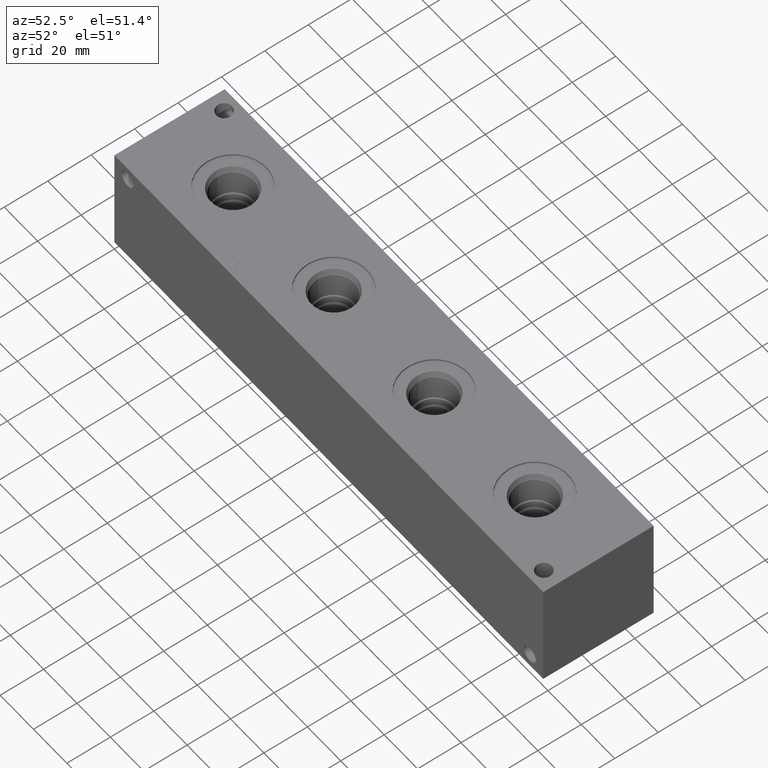
[diagram: clean part render]
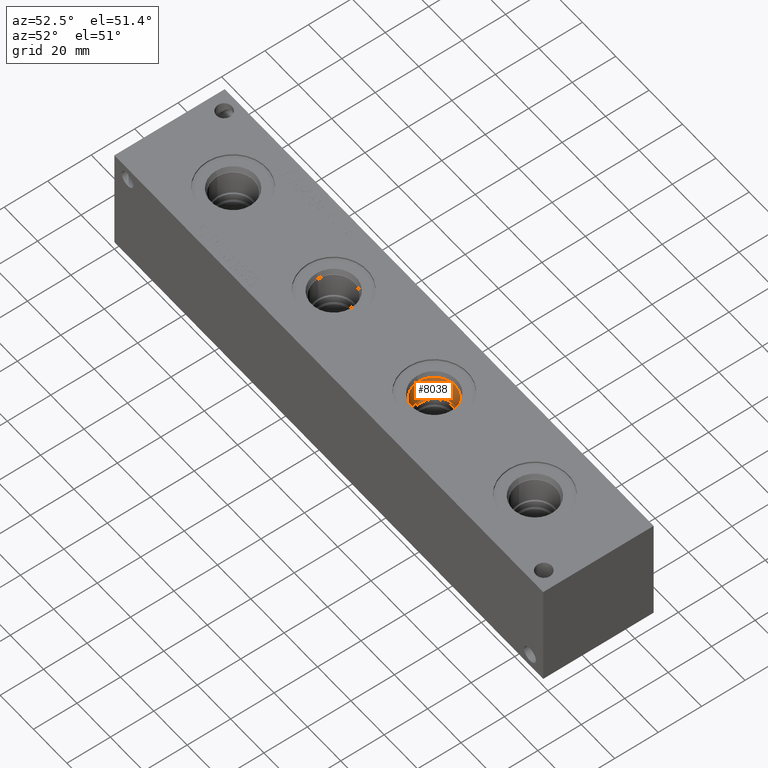
[diagram: same view with one face highlighted and labeled with its STEP entity id]
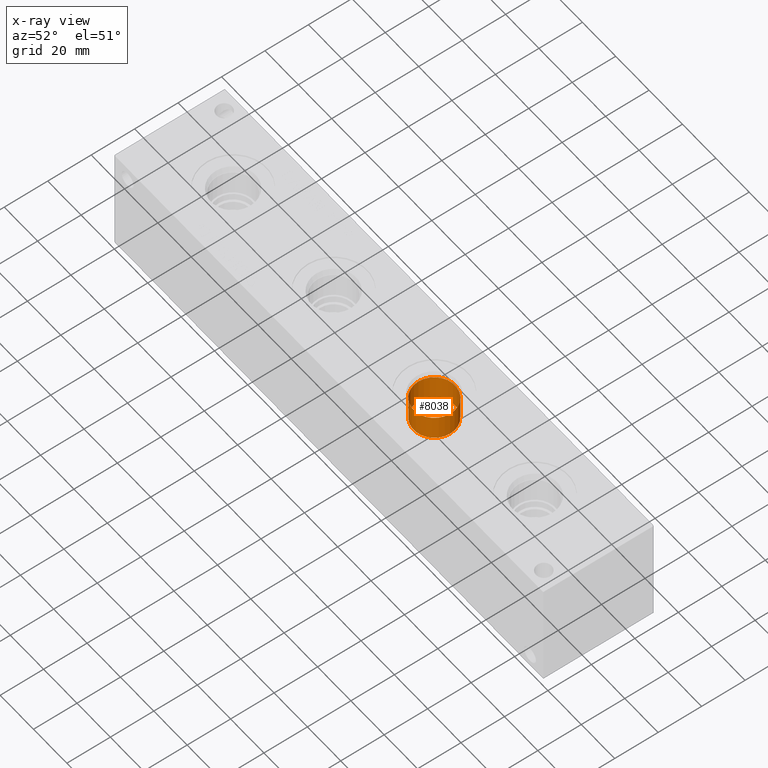
[diagram: x-ray of the same camera — body ghosted, the highlighted face saturated]
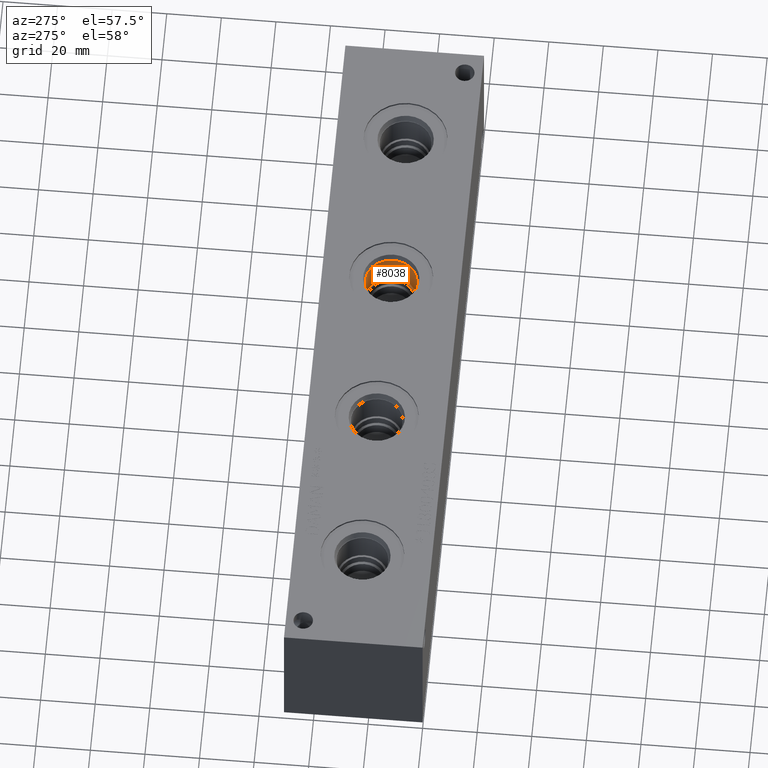
[diagram: same view with one face highlighted and labeled with its STEP entity id]
A machine part, auxiliary view. The second image highlights one B-rep face of the part: STEP entity #8038.
The next image is the same camera in x-ray: the body ghosted, the highlighted face saturated — about 0% of this face is hidden behind the body in this view.
A second angle (auxiliary view) of the same face is appended — the face is thin or edge-on in the first view.
In plain terms, the highlighted cylindrical surface (bore or boss wall) has radius 9.525 mm, axis along (0, 0, 1).
Its self-contained STEP definition (entity closure, byte-faithful):
#85=CYLINDRICAL_SURFACE('',#8499,9.525);
#202=CIRCLE('',#8443,9.525);
#234=CIRCLE('',#8496,9.525);
#235=CIRCLE('',#8497,9.525);
#948=FACE_OUTER_BOUND('',#1413,.T.);
#1413=EDGE_LOOP('',(#7071,#7072,#7073,#7074,#7075));
#2163=LINE('',#13779,#2899);
#2899=VECTOR('',#10111,9.525);
#3810=VERTEX_POINT('',#13669);
#3842=VERTEX_POINT('',#13772);
#3843=VERTEX_POINT('',#13773);
#4882=EDGE_CURVE('',#3810,#3810,#202,.T.);
#4931=EDGE_CURVE('',#3842,#3843,#234,.T.);
#4932=EDGE_CURVE('',#3843,#3842,#235,.T.);
#4934=EDGE_CURVE('',#3810,#3843,#2163,.T.);
#7071=ORIENTED_EDGE('',*,*,#4882,.T.);
#7072=ORIENTED_EDGE('',*,*,#4934,.T.);
#7073=ORIENTED_EDGE('',*,*,#4931,.F.);
#7074=ORIENTED_EDGE('',*,*,#4932,.F.);
#7075=ORIENTED_EDGE('',*,*,#4934,.F.);
#8038=ADVANCED_FACE('',(#948),#85,.F.);
#8443=AXIS2_PLACEMENT_3D('',#13671,#9980,#9981);
#8496=AXIS2_PLACEMENT_3D('',#13774,#10103,#10104);
#8497=AXIS2_PLACEMENT_3D('',#13775,#10105,#10106);
#8499=AXIS2_PLACEMENT_3D('',#13778,#10109,#10110);
#9980=DIRECTION('center_axis',(0.,0.,1.));
#9981=DIRECTION('ref_axis',(1.,0.,0.));
#10103=DIRECTION('center_axis',(0.,0.,1.));
#10104=DIRECTION('ref_axis',(1.,0.,0.));
#10105=DIRECTION('center_axis',(0.,0.,1.));
#10106=DIRECTION('ref_axis',(1.,0.,0.));
#10109=DIRECTION('center_axis',(0.,0.,1.));
#10110=DIRECTION('ref_axis',(1.,0.,0.));
#10111=DIRECTION('',(0.,0.,-1.));
#13669=CARTESIAN_POINT('',(149.225,25.4,47.3964));
#13671=CARTESIAN_POINT('Origin',(158.75,25.4,47.3964));
#13772=CARTESIAN_POINT('',(168.275,25.4,35.7378));
#13773=CARTESIAN_POINT('',(149.225,25.4,35.7378));
#13774=CARTESIAN_POINT('Origin',(158.75,25.4,35.7378));
#13775=CARTESIAN_POINT('Origin',(158.75,25.4,35.7378));
#13778=CARTESIAN_POINT('Origin',(158.75,25.4,43.2689));
#13779=CARTESIAN_POINT('',(149.225,25.4,43.2689));